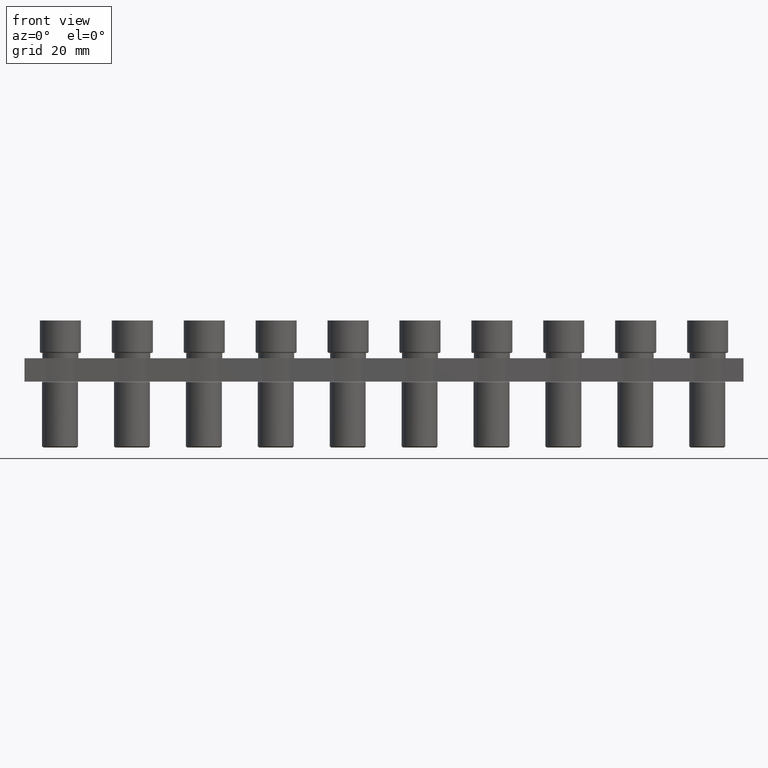
[diagram: clean part render]
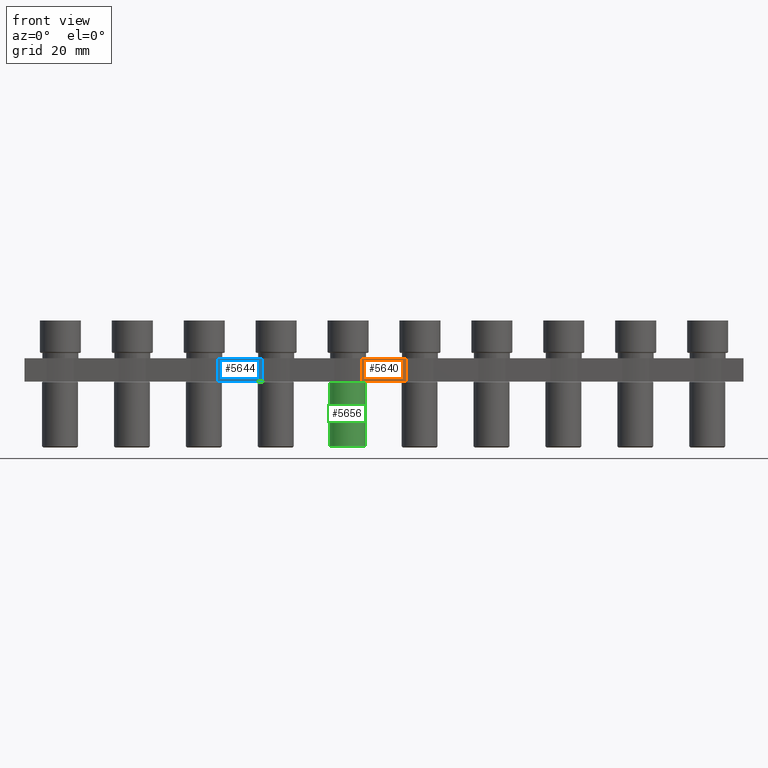
[diagram: same view with three faces highlighted in distinct colors, each labeled with its STEP entity id]
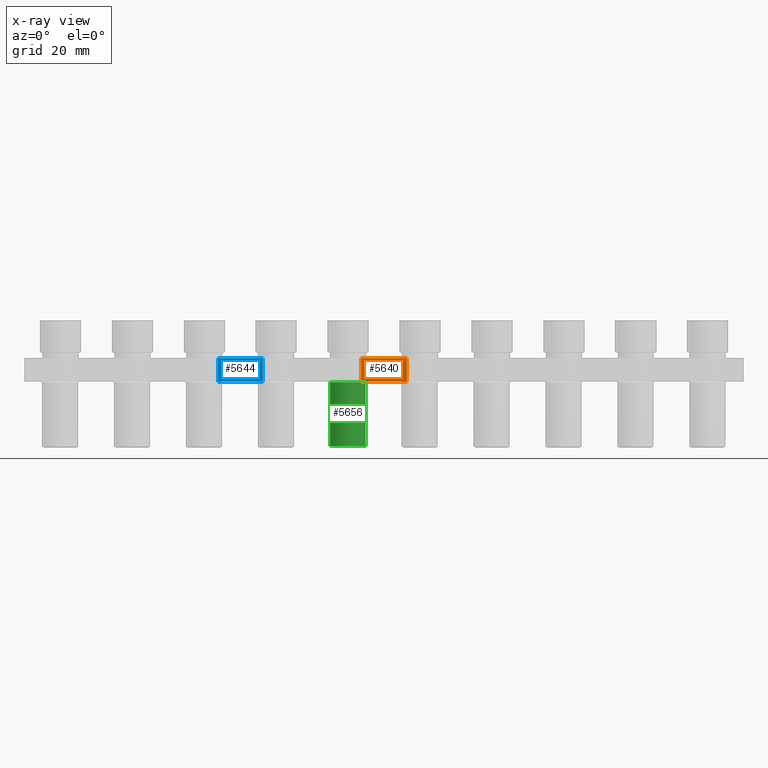
[diagram: x-ray of the same camera — body ghosted, the three highlighted faces saturated]
A machine part, front view with three faces highlighted in distinct colors.
The next image is the same camera in x-ray (body ghosted, the three faces saturated) — at least one of them is partly hidden behind the body in this view.
Their STEP definitions:

[orange] entity #5640 — the highlighted planar face has unit normal (-0, 1, 0).
#73 = ORIENTED_EDGE ( 'NONE', *, *, #8889, .F. ) ;
#80 = ORIENTED_EDGE ( 'NONE', *, *, #15833, .F. ) ;
#93 = ORIENTED_EDGE ( 'NONE', *, *, #8849, .F. ) ;
#114 = ORIENTED_EDGE ( 'NONE', *, *, #8971, .F. ) ;
#1542 = CARTESIAN_POINT ( 'NONE',  ( 57.74999999999838000, -3.349999999999909900, -0.9000000000000014700 ) ) ;
#1682 = CARTESIAN_POINT ( 'NONE',  ( 57.74999999999837300, -3.349999999999910400, -4.800000000000001600 ) ) ;
#1714 = CARTESIAN_POINT ( 'NONE',  ( 50.25000000000155600, -3.349999999999921900, -4.800000000000001600 ) ) ;
#1718 = CARTESIAN_POINT ( 'NONE',  ( 50.25000000000154200, -3.349999999999923700, -0.9000000000000014700 ) ) ;
#2241 = FACE_OUTER_BOUND ( 'NONE', #4721, .T. ) ;
#2275 = PLANE ( 'NONE',  #2832 ) ;
#2276 = CARTESIAN_POINT ( 'NONE',  ( 64.15000000000000600, -3.349999999999908200, -0.9000000000000014700 ) ) ;
#2277 = DIRECTION ( 'NONE',  ( -1.245679091791856200E-016, 1.000000000000000000, 0.0000000000000000000 ) ) ;
#2278 = DIRECTION ( 'NONE',  ( -1.000000000000000000, -1.245679091791856200E-016, 0.0000000000000000000 ) ) ;
#2832 = AXIS2_PLACEMENT_3D ( 'NONE', #2276, #2277, #2278 ) ;
#3719 = VERTEX_POINT ( 'NONE', #1542 ) ;
#3797 = VERTEX_POINT ( 'NONE', #1718 ) ;
#3844 = VERTEX_POINT ( 'NONE', #1682 ) ;
#3853 = VERTEX_POINT ( 'NONE', #1714 ) ;
#4721 = EDGE_LOOP ( 'NONE', ( #93, #80, #114, #73 ) ) ;
#5640 = ADVANCED_FACE ( 'NONE', ( #2241 ), #2275, .F. ) ;
#8849 = EDGE_CURVE ( 'NONE', #3844, #3853, #11472, .T. ) ;
#8889 = EDGE_CURVE ( 'NONE', #3853, #3797, #11757, .T. ) ;
#8971 = EDGE_CURVE ( 'NONE', #3797, #3719, #13004, .T. ) ;
#11472 = LINE ( 'NONE', #11482, #16597 ) ;
#11482 = CARTESIAN_POINT ( 'NONE',  ( -29.85000000000004400, -3.349999999999908200, -4.800000000000001600 ) ) ;
#11485 = DIRECTION ( 'NONE',  ( -1.000000000000000000, 0.0000000000000000000, -0.0000000000000000000 ) ) ;
#11724 = CARTESIAN_POINT ( 'NONE',  ( 50.25000000000145000, -3.349999999999936100, -9.302499305941093900 ) ) ;
#11726 = DIRECTION ( 'NONE',  ( 0.0000000000000000000, 0.0000000000000000000, 1.000000000000000000 ) ) ;
#11757 = LINE ( 'NONE', #11724, #16697 ) ;
#12967 = DIRECTION ( 'NONE',  ( 1.000000000000000000, 1.245679091791856200E-016, -0.0000000000000000000 ) ) ;
#12970 = CARTESIAN_POINT ( 'NONE',  ( 64.15000000000000600, -3.349999999999908200, -0.9000000000000014700 ) ) ;
#13004 = LINE ( 'NONE', #12970, #16900 ) ;
#15152 = LINE ( 'NONE', #15178, #15530 ) ;
#15168 = DIRECTION ( 'NONE',  ( -0.0000000000000000000, -0.0000000000000000000, -1.000000000000000000 ) ) ;
#15178 = CARTESIAN_POINT ( 'NONE',  ( 57.74999999999838000, -3.349999999999909100, -0.9000000000000014700 ) ) ;
#15530 = VECTOR ( 'NONE', #15168, 1000.000000000000000 ) ;
#15833 = EDGE_CURVE ( 'NONE', #3719, #3844, #15152, .T. ) ;
#16597 = VECTOR ( 'NONE', #11485, 1000.000000000000000 ) ;
#16697 = VECTOR ( 'NONE', #11726, 1000.000000000000000 ) ;
#16900 = VECTOR ( 'NONE', #12967, 1000.000000000000000 ) ;

[blue] entity #5644 — the highlighted planar face has unit normal (-0, 1, 0).
#1351 = CARTESIAN_POINT ( 'NONE',  ( 26.25000000000155300, -3.349999999999925000, -4.800000000000001600 ) ) ;
#1633 = CARTESIAN_POINT ( 'NONE',  ( 26.25000000000154200, -3.349999999999926800, -0.9000000000000014700 ) ) ;
#1645 = CARTESIAN_POINT ( 'NONE',  ( 33.74999999999838000, -3.349999999999913000, -0.9000000000000014700 ) ) ;
#1713 = CARTESIAN_POINT ( 'NONE',  ( 33.74999999999838000, -3.349999999999913500, -4.800000000000001600 ) ) ;
#2300 = CARTESIAN_POINT ( 'NONE',  ( 40.15000000000000600, -3.349999999999911300, -0.9000000000000014700 ) ) ;
#2304 = DIRECTION ( 'NONE',  ( -1.000000000000000000, -1.245679091791856200E-016, 0.0000000000000000000 ) ) ;
#2314 = DIRECTION ( 'NONE',  ( -1.245679091791856200E-016, 1.000000000000000000, 0.0000000000000000000 ) ) ;
#2321 = PLANE ( 'NONE',  #2819 ) ;
#2323 = FACE_OUTER_BOUND ( 'NONE', #4629, .T. ) ;
#2819 = AXIS2_PLACEMENT_3D ( 'NONE', #2300, #2314, #2304 ) ;
#3471 = VERTEX_POINT ( 'NONE', #1351 ) ;
#3747 = VERTEX_POINT ( 'NONE', #1645 ) ;
#3778 = VERTEX_POINT ( 'NONE', #1633 ) ;
#3825 = VERTEX_POINT ( 'NONE', #1713 ) ;
#4629 = EDGE_LOOP ( 'NONE', ( #7641, #7679, #7635, #7656 ) ) ;
#5644 = ADVANCED_FACE ( 'NONE', ( #2323 ), #2321, .F. ) ;
#7635 = ORIENTED_EDGE ( 'NONE', *, *, #8974, .F. ) ;
#7641 = ORIENTED_EDGE ( 'NONE', *, *, #8873, .F. ) ;
#7656 = ORIENTED_EDGE ( 'NONE', *, *, #8850, .F. ) ;
#7679 = ORIENTED_EDGE ( 'NONE', *, *, #9065, .F. ) ;
#8764 = VECTOR ( 'NONE', #12231, 1000.000000000000000 ) ;
#8850 = EDGE_CURVE ( 'NONE', #3471, #3778, #11486, .T. ) ;
#8873 = EDGE_CURVE ( 'NONE', #3825, #3471, #11542, .T. ) ;
#8974 = EDGE_CURVE ( 'NONE', #3778, #3747, #12982, .T. ) ;
#9065 = EDGE_CURVE ( 'NONE', #3747, #3825, #12159, .T. ) ;
#11465 = DIRECTION ( 'NONE',  ( 0.0000000000000000000, 0.0000000000000000000, 1.000000000000000000 ) ) ;
#11484 = CARTESIAN_POINT ( 'NONE',  ( 26.25000000000144600, -3.349999999999938800, -9.302499305941093900 ) ) ;
#11486 = LINE ( 'NONE', #11484, #16620 ) ;
#11542 = LINE ( 'NONE', #11566, #16648 ) ;
#11558 = DIRECTION ( 'NONE',  ( -1.000000000000000000, 0.0000000000000000000, -0.0000000000000000000 ) ) ;
#11566 = CARTESIAN_POINT ( 'NONE',  ( -53.85000000000005100, -3.349999999999911300, -4.800000000000001600 ) ) ;
#12159 = LINE ( 'NONE', #12230, #8764 ) ;
#12230 = CARTESIAN_POINT ( 'NONE',  ( 33.74999999999838000, -3.349999999999912200, -0.9000000000000014700 ) ) ;
#12231 = DIRECTION ( 'NONE',  ( -0.0000000000000000000, -0.0000000000000000000, -1.000000000000000000 ) ) ;
#12982 = LINE ( 'NONE', #12983, #16871 ) ;
#12983 = CARTESIAN_POINT ( 'NONE',  ( 40.15000000000000600, -3.349999999999911300, -0.9000000000000014700 ) ) ;
#13000 = DIRECTION ( 'NONE',  ( 1.000000000000000000, 1.245679091791856200E-016, -0.0000000000000000000 ) ) ;
#16620 = VECTOR ( 'NONE', #11465, 1000.000000000000000 ) ;
#16648 = VECTOR ( 'NONE', #11558, 1000.000000000000000 ) ;
#16871 = VECTOR ( 'NONE', #13000, 1000.000000000000000 ) ;

[green] entity #5656 — the highlighted cylindrical surface (edge-blend (fillet) strip) has radius 3 mm, axis along (-0, -0, -1).
#61 = ORIENTED_EDGE ( 'NONE', *, *, #15681, .F. ) ;
#78 = ORIENTED_EDGE ( 'NONE', *, *, #15838, .T. ) ;
#83 = ORIENTED_EDGE ( 'NONE', *, *, #8891, .F. ) ;
#85 = ORIENTED_EDGE ( 'NONE', *, *, #15725, .T. ) ;
#97 = ORIENTED_EDGE ( 'NONE', *, *, #15632, .T. ) ;
#1786 = CARTESIAN_POINT ( 'NONE',  ( 44.93832239341087800, 5.629299843167805300E-015, -15.60000000008048600 ) ) ;
#1826 = CARTESIAN_POINT ( 'NONE',  ( 50.93832239340301300, 5.996693882911529500E-015, -4.900000000077398000 ) ) ;
#1834 = CARTESIAN_POINT ( 'NONE',  ( 50.93832239341086400, 5.996693882912011500E-015, -15.60000000008048600 ) ) ;
#1847 = CARTESIAN_POINT ( 'NONE',  ( 44.93832239341873000, 5.629299843167805300E-015, -4.900000000077398000 ) ) ;
#2334 = DIRECTION ( 'NONE',  ( -0.0000000000000000000, -0.0000000000000000000, -1.000000000000000000 ) ) ;
#2335 = FACE_OUTER_BOUND ( 'NONE', #4658, .T. ) ;
#2347 = DIRECTION ( 'NONE',  ( -1.000000000000000000, 0.0000000000000000000, 0.0000000000000000000 ) ) ;
#2351 = CYLINDRICAL_SURFACE ( 'NONE', #2835, 2.999999999999995600 ) ;
#2366 = CARTESIAN_POINT ( 'NONE',  ( 47.93832239341087100, 5.629299843167805300E-015, -4.800000000080492800 ) ) ;
#2474 = CARTESIAN_POINT ( 'NONE',  ( 47.93832239341087100, -2.999999999911685800, -15.60000000008048600 ) ) ;
#2835 = AXIS2_PLACEMENT_3D ( 'NONE', #2366, #2334, #2347 ) ;
#4658 = EDGE_LOOP ( 'NONE', ( #61, #83, #85, #78, #97 ) ) ;
#5264 = VERTEX_POINT ( 'NONE', #1786 ) ;
#5326 = VERTEX_POINT ( 'NONE', #2474 ) ;
#5334 = VERTEX_POINT ( 'NONE', #1826 ) ;
#5352 = VERTEX_POINT ( 'NONE', #1834 ) ;
#5358 = VERTEX_POINT ( 'NONE', #1847 ) ;
#5656 = ADVANCED_FACE ( 'NONE', ( #2335 ), #2351, .T. ) ;
#8639 = CIRCLE ( 'NONE', #8640, 2.999999999999995600 ) ;
#8640 = AXIS2_PLACEMENT_3D ( 'NONE', #14200, #14223, #14219 ) ;
#8751 = VECTOR ( 'NONE', #15349, 1000.000000000000000 ) ;
#8891 = EDGE_CURVE ( 'NONE', #5358, #5334, #16693, .T. ) ;
#11709 = DIRECTION ( 'NONE',  ( -0.0000000000000000000, -0.0000000000000000000, 1.000000000000000000 ) ) ;
#11711 = DIRECTION ( 'NONE',  ( -1.000000000000000000, 0.0000000000000000000, 0.0000000000000000000 ) ) ;
#11738 = CARTESIAN_POINT ( 'NONE',  ( 47.93832239341087100, 5.629299843167805300E-015, -4.900000000077398000 ) ) ;
#14200 = CARTESIAN_POINT ( 'NONE',  ( 47.93832239341087100, 5.629299843167805300E-015, -15.60000000008048600 ) ) ;
#14219 = DIRECTION ( 'NONE',  ( -1.000000000000000000, 0.0000000000000000000, 0.0000000000000000000 ) ) ;
#14223 = DIRECTION ( 'NONE',  ( 0.0000000000000000000, 0.0000000000000000000, 1.000000000000000000 ) ) ;
#14419 = LINE ( 'NONE', #14440, #15594 ) ;
#14440 = CARTESIAN_POINT ( 'NONE',  ( 44.93832239341087800, 5.629299843167805300E-015, -4.800000000080492800 ) ) ;
#14441 = DIRECTION ( 'NONE',  ( -0.0000000000000000000, -0.0000000000000000000, -1.000000000000000000 ) ) ;
#15214 = DIRECTION ( 'NONE',  ( 0.0000000000000000000, 0.0000000000000000000, 1.000000000000000000 ) ) ;
#15234 = CARTESIAN_POINT ( 'NONE',  ( 47.93832239341087100, 5.629299843167805300E-015, -15.60000000008048600 ) ) ;
#15243 = DIRECTION ( 'NONE',  ( -1.000000000000000000, 0.0000000000000000000, 0.0000000000000000000 ) ) ;
#15345 = LINE ( 'NONE', #15348, #8751 ) ;
#15348 = CARTESIAN_POINT ( 'NONE',  ( 50.93832239341086400, 5.996693882912010700E-015, -4.800000000080492800 ) ) ;
#15349 = DIRECTION ( 'NONE',  ( -0.0000000000000000000, -0.0000000000000000000, -1.000000000000000000 ) ) ;
#15532 = AXIS2_PLACEMENT_3D ( 'NONE', #15234, #15214, #15243 ) ;
#15536 = CIRCLE ( 'NONE', #15532, 2.999999999999995600 ) ;
#15594 = VECTOR ( 'NONE', #14441, 1000.000000000000000 ) ;
#15632 = EDGE_CURVE ( 'NONE', #5326, #5352, #8639, .T. ) ;
#15681 = EDGE_CURVE ( 'NONE', #5334, #5352, #15345, .T. ) ;
#15725 = EDGE_CURVE ( 'NONE', #5358, #5264, #14419, .T. ) ;
#15838 = EDGE_CURVE ( 'NONE', #5264, #5326, #15536, .T. ) ;
#16693 = CIRCLE ( 'NONE', #16694, 2.999999999992141000 ) ;
#16694 = AXIS2_PLACEMENT_3D ( 'NONE', #11738, #11709, #11711 ) ;